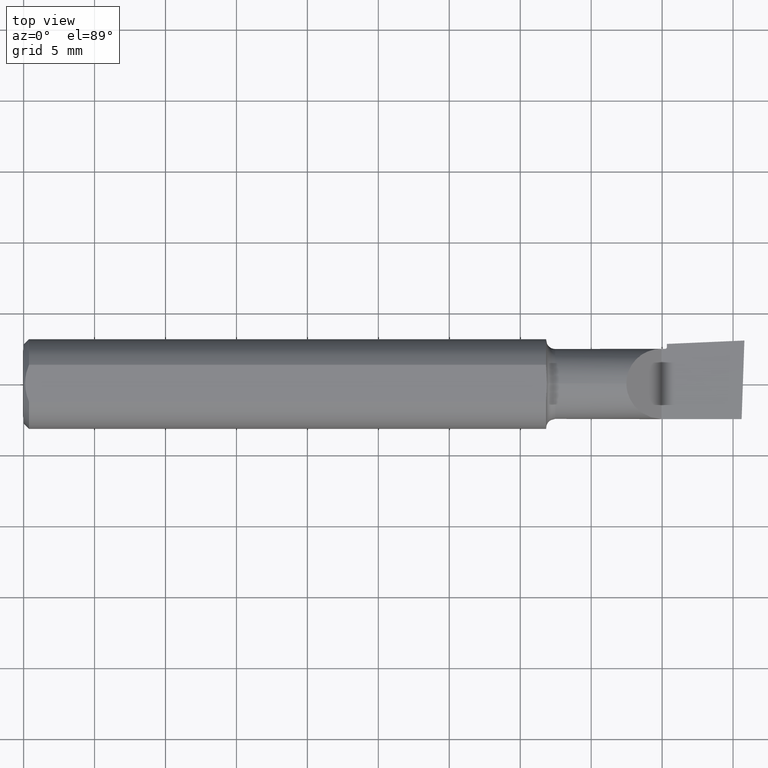
[diagram: clean part render]
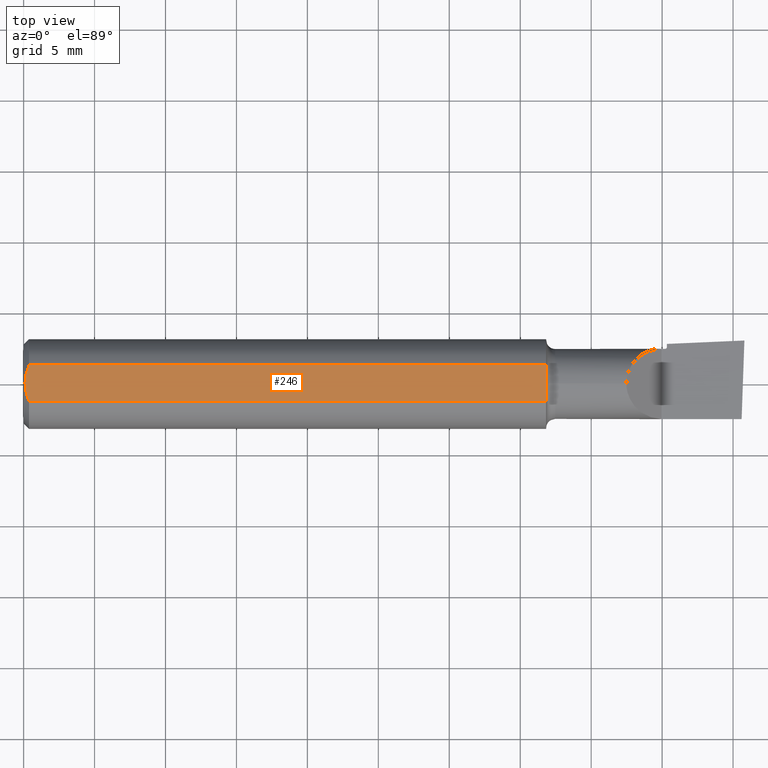
[diagram: same view with one face highlighted and labeled with its STEP entity id]
A machine part, top view. The second image highlights one B-rep face of the part: STEP entity #246.
In plain terms, the highlighted planar face has unit normal (-0, 0, -1).
Its self-contained STEP definition (entity closure, byte-faithful):
#4 = CARTESIAN_POINT ( 'NONE',  ( 1.450000000000000178, 0.05124158467494929065, 0.1138500000000000068 ) ) ;
#21 = CARTESIAN_POINT ( 'NONE',  ( 1.450000000000000178, -0.04521534584629426090, 0.1138500000000000068 ) ) ;
#22 = CARTESIAN_POINT ( 'NONE',  ( 1.450000000000000178, 0.05124158467494929065, 0.1138500000000000068 ) ) ;
#23 = VERTEX_POINT ( 'NONE', #61 ) ;
#26 = EDGE_CURVE ( 'NONE', #38, #23, #576, .T. ) ;
#38 = VERTEX_POINT ( 'NONE', #585 ) ;
#44 = CARTESIAN_POINT ( 'NONE',  ( 0.000000000000000000, 0.05124158467494929065, 0.1138500000000000068 ) ) ;
#47 = EDGE_CURVE ( 'NONE', #220, #237, #435, .T. ) ;
#61 = CARTESIAN_POINT ( 'NONE',  ( 0.004000000000001717460, 1.393792698067675767E-17, 0.1138500000000000068 ) ) ;
#64 = CARTESIAN_POINT ( 'NONE',  ( 1.450000000000000178, 0.03767470274412997727, 0.1138499999999999790 ) ) ;
#69 = CARTESIAN_POINT ( 'NONE',  ( 1.451544137193443662, 0.000000000000000000, 0.1138500000000000068 ) ) ;
#70 = CARTESIAN_POINT ( 'NONE',  ( 1.451544137193443662, 0.000000000000000000, 0.1138500000000000068 ) ) ;
#96 = ORIENTED_EDGE ( 'NONE', *, *, #137, .F. ) ;
#100 = EDGE_CURVE ( 'NONE', #511, #237, #254, .T. ) ;
#104 = CARTESIAN_POINT ( 'NONE',  ( 1.450000000000000178, -0.04521534584629426090, 0.1138500000000000068 ) ) ;
#105 = CARTESIAN_POINT ( 'NONE',  ( 0.01167165678009124061, 0.04313208428301595898, 0.1138500000000000068 ) ) ;
#107 = ORIENTED_EDGE ( 'NONE', *, *, #550, .F. ) ;
#119 = CARTESIAN_POINT ( 'NONE',  ( 1.451544137193443662, 0.003725360303307010627, 0.1138500000000000068 ) ) ;
#135 = CARTESIAN_POINT ( 'NONE',  ( 0.01168357029558645885, -0.04316111153536574679, 0.1138500000000000068 ) ) ;
#137 = EDGE_CURVE ( 'NONE', #378, #189, #266, .T. ) ;
#153 = CARTESIAN_POINT ( 'NONE',  ( 0.01500000000000161621, 0.05124158467494929065, 0.1138500000000000068 ) ) ;
#158 = CARTESIAN_POINT ( 'NONE',  ( 1.450000000000000178, 0.04521534584629426090, 0.1138500000000000068 ) ) ;
#159 = DIRECTION ( 'NONE',  ( 0.000000000000000000, -1.000000000000000000, 0.000000000000000000 ) ) ;
#165 = CARTESIAN_POINT ( 'NONE',  ( 1.451217750162281162, 0.01507525941000600889, 0.1138500000000000068 ) ) ;
#181 = CARTESIAN_POINT ( 'NONE',  ( 0.004000000000001641999, -0.008823500054840109630, 0.1138500000000000068 ) ) ;
#184 = DIRECTION ( 'NONE',  ( 1.000000000000000000, -0.000000000000000000, -0.000000000000000000 ) ) ;
#186 = ORIENTED_EDGE ( 'NONE', *, *, #340, .T. ) ;
#188 = CARTESIAN_POINT ( 'NONE',  ( 0.000000000000000000, 0.05124158467494929065, 0.1138500000000000068 ) ) ;
#189 = VERTEX_POINT ( 'NONE', #219 ) ;
#191 = VERTEX_POINT ( 'NONE', #70 ) ;
#198 = CARTESIAN_POINT ( 'NONE',  ( 0.005042108978870534983, 0.01754746848146375438, 0.1138499999999999790 ) ) ;
#216 = CARTESIAN_POINT ( 'NONE',  ( 1.450000000000000178, 0.05124158467494929065, 0.1138500000000000068 ) ) ;
#219 = CARTESIAN_POINT ( 'NONE',  ( 1.450000000000000178, 0.04521534584629426090, 0.1138500000000000068 ) ) ;
#220 = VERTEX_POINT ( 'NONE', #601 ) ;
#237 = VERTEX_POINT ( 'NONE', #573 ) ;
#246 = ADVANCED_FACE ( 'NONE', ( #474 ), #515, .F. ) ;
#254 = LINE ( 'NONE', #216, #480 ) ;
#265 = B_SPLINE_CURVE_WITH_KNOTS ( 'NONE', 3,
 ( #158, #64, #595, #505, #165, #402, #119, #69 ),
 .UNSPECIFIED., .F., .F.,
 ( 4, 2, 2, 4 ),
 ( 0.009494034402465429193, 0.01006153212559411300, 0.01034528098715845404, 0.01062902984872279508 ),
 .UNSPECIFIED. ) ;
#266 = LINE ( 'NONE', #22, #507 ) ;
#268 = VECTOR ( 'NONE', #394, 39.37007874015748143 ) ;
#276 = EDGE_CURVE ( 'NONE', #38, #378, #519, .T. ) ;
#278 = DIRECTION ( 'NONE',  ( -0.000000000000000000, 0.000000000000000000, -1.000000000000000000 ) ) ;
#298 = B_SPLINE_CURVE_WITH_KNOTS ( 'NONE', 3,
 ( #586, #348, #351, #547, #496, #21 ),
 .UNSPECIFIED., .F., .F.,
 ( 4, 2, 4 ),
 ( 0.000000000000000000, 0.0005745634997278532222, 0.001149126999455706228 ),
 .UNSPECIFIED. ) ;
#340 = EDGE_CURVE ( 'NONE', #23, #220, #521, .T. ) ;
#348 = CARTESIAN_POINT ( 'NONE',  ( 1.451544137193444106, -0.007543487722962840397, 0.1138500000000000206 ) ) ;
#351 = CARTESIAN_POINT ( 'NONE',  ( 1.451230423267105385, -0.01507771510623031989, 0.1138500000000000206 ) ) ;
#352 = CARTESIAN_POINT ( 'NONE',  ( 0.008865958875318083812, 0.03465827226192197408, 0.1138500000000000206 ) ) ;
#356 = DIRECTION ( 'NONE',  ( 0.000000000000000000, -1.000000000000000000, 0.000000000000000000 ) ) ;
#362 = ORIENTED_EDGE ( 'NONE', *, *, #276, .F. ) ;
#372 = AXIS2_PLACEMENT_3D ( 'NONE', #188, #278, #465 ) ;
#375 = ORIENTED_EDGE ( 'NONE', *, *, #47, .T. ) ;
#378 = VERTEX_POINT ( 'NONE', #4 ) ;
#394 = DIRECTION ( 'NONE',  ( 1.000000000000000000, -0.000000000000000000, -0.000000000000000000 ) ) ;
#398 = CARTESIAN_POINT ( 'NONE',  ( 0.004000000000001717460, 1.393792698067675767E-17, 0.1138500000000000068 ) ) ;
#402 = CARTESIAN_POINT ( 'NONE',  ( 1.451472463768520793, 0.007539319639682128503, 0.1138499999999999790 ) ) ;
#407 = EDGE_LOOP ( 'NONE', ( #96, #362, #569, #186, #375, #416, #107, #622 ) ) ;
#416 = ORIENTED_EDGE ( 'NONE', *, *, #100, .F. ) ;
#431 = CARTESIAN_POINT ( 'NONE',  ( 0.01500000000000161621, -0.05124158467494929065, 0.1138500000000000068 ) ) ;
#435 = LINE ( 'NONE', #587, #268 ) ;
#441 = CARTESIAN_POINT ( 'NONE',  ( 0.004000000000001641999, 0.008855526941626007051, 0.1138500000000000068 ) ) ;
#465 = DIRECTION ( 'NONE',  ( -1.000000000000000000, 0.000000000000000000, 0.000000000000000000 ) ) ;
#474 = FACE_OUTER_BOUND ( 'NONE', #407, .T. ) ;
#476 = CARTESIAN_POINT ( 'NONE',  ( 0.008882970931292883537, -0.03471784816170728205, 0.1138499999999999790 ) ) ;
#480 = VECTOR ( 'NONE', #159, 39.37007874015748143 ) ;
#496 = CARTESIAN_POINT ( 'NONE',  ( 1.450000000000000178, -0.03767185812333140316, 0.1138499999999999790 ) ) ;
#505 = CARTESIAN_POINT ( 'NONE',  ( 1.451035365353036344, 0.01884221319329125108, 0.1138499999999999790 ) ) ;
#507 = VECTOR ( 'NONE', #356, 39.37007874015748143 ) ;
#511 = VERTEX_POINT ( 'NONE', #104 ) ;
#512 = CARTESIAN_POINT ( 'NONE',  ( 0.004000000000001717460, 1.393792698067675767E-17, 0.1138500000000000068 ) ) ;
#515 = PLANE ( 'NONE',  #372 ) ;
#519 = LINE ( 'NONE', #44, #591 ) ;
#521 = B_SPLINE_CURVE_WITH_KNOTS ( 'NONE', 3,
 ( #512, #181, #567, #476, #135, #431 ),
 .UNSPECIFIED., .F., .F.,
 ( 4, 2, 4 ),
 ( 0.003244268964228030558, 0.003905524719786097540, 0.004566780475344164522 ),
 .UNSPECIFIED. ) ;
#547 = CARTESIAN_POINT ( 'NONE',  ( 1.450449889605148313, -0.03014165043105670669, 0.1138500000000000068 ) ) ;
#550 = EDGE_CURVE ( 'NONE', #191, #511, #298, .T. ) ;
#567 = CARTESIAN_POINT ( 'NONE',  ( 0.005048785290222027045, -0.01759379026749686298, 0.1138500000000000206 ) ) ;
#569 = ORIENTED_EDGE ( 'NONE', *, *, #26, .T. ) ;
#573 = CARTESIAN_POINT ( 'NONE',  ( 1.450000000000000178, -0.05124158467494929065, 0.1138500000000000068 ) ) ;
#576 = B_SPLINE_CURVE_WITH_KNOTS ( 'NONE', 3,
 ( #153, #105, #352, #198, #441, #398 ),
 .UNSPECIFIED., .F., .F.,
 ( 4, 2, 4 ),
 ( 0.001916957098810735368, 0.002580613031519382854, 0.003244268964228030558 ),
 .UNSPECIFIED. ) ;
#578 = EDGE_CURVE ( 'NONE', #189, #191, #265, .T. ) ;
#585 = CARTESIAN_POINT ( 'NONE',  ( 0.01500000000000161621, 0.05124158467494929065, 0.1138500000000000068 ) ) ;
#586 = CARTESIAN_POINT ( 'NONE',  ( 1.451544137193443662, 0.000000000000000000, 0.1138500000000000068 ) ) ;
#587 = CARTESIAN_POINT ( 'NONE',  ( 0.000000000000000000, -0.05124158467494929065, 0.1138500000000000068 ) ) ;
#591 = VECTOR ( 'NONE', #184, 39.37007874015748143 ) ;
#595 = CARTESIAN_POINT ( 'NONE',  ( 1.450449855476003469, 0.03014236630298425257, 0.1138499999999999790 ) ) ;
#601 = CARTESIAN_POINT ( 'NONE',  ( 0.01500000000000161621, -0.05124158467494929065, 0.1138500000000000068 ) ) ;
#622 = ORIENTED_EDGE ( 'NONE', *, *, #578, .F. ) ;